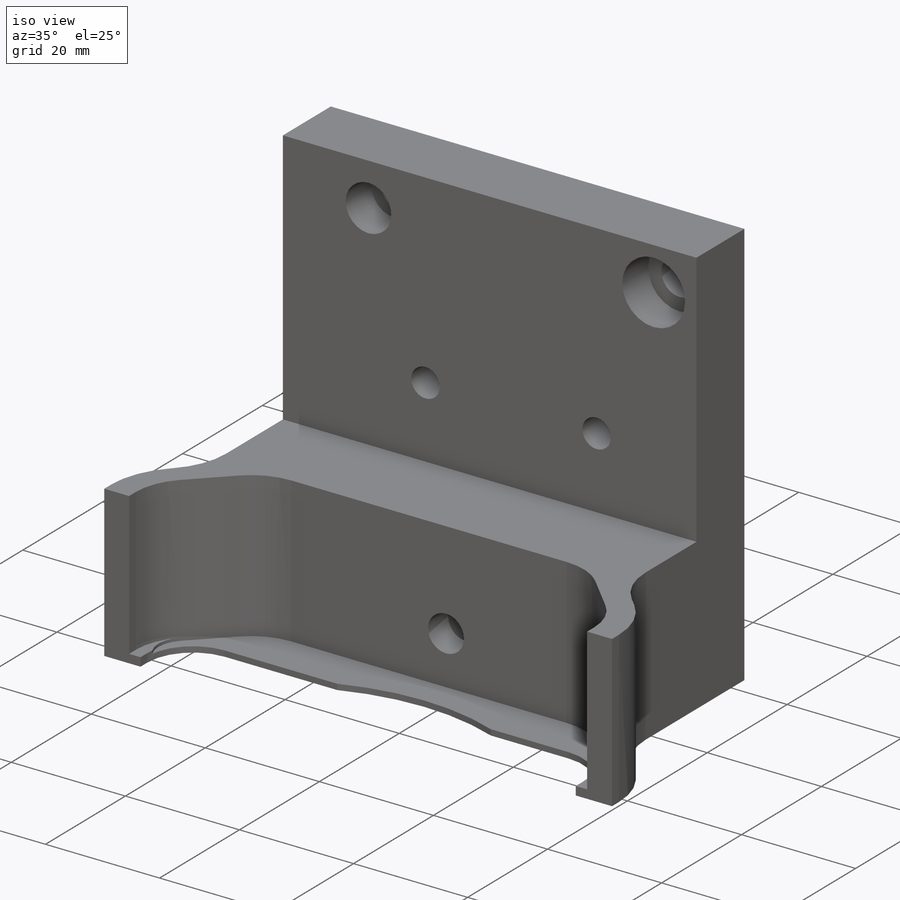
[diagram: iso view]
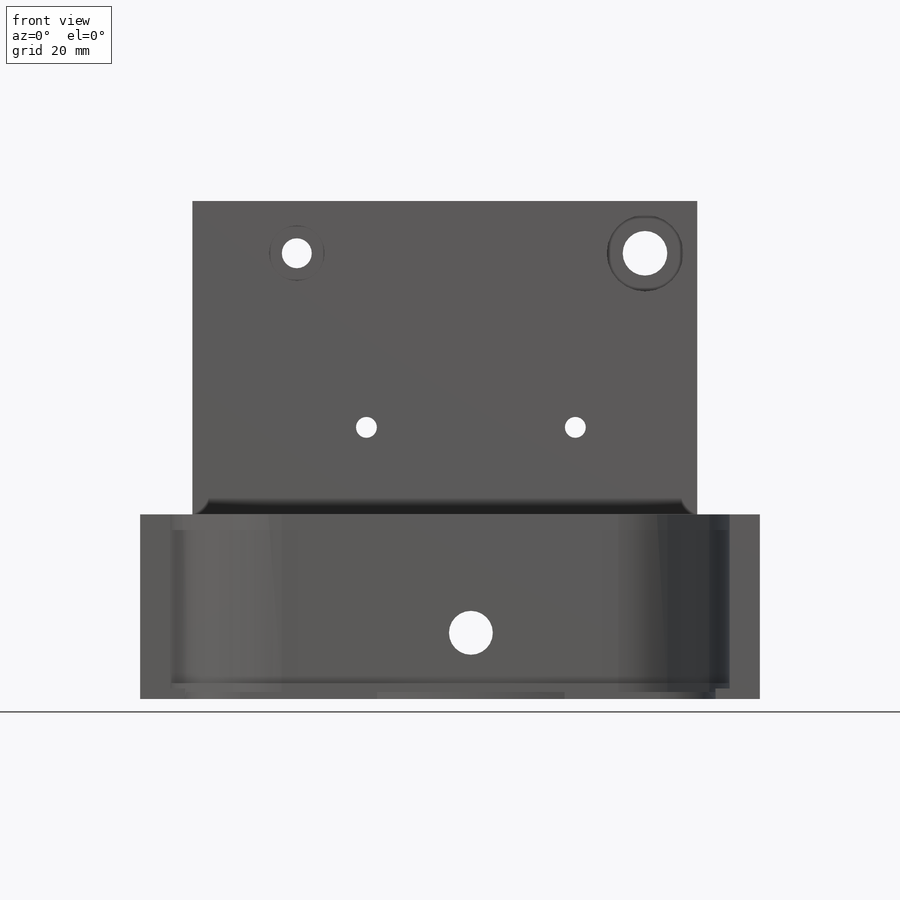
[diagram: front view]
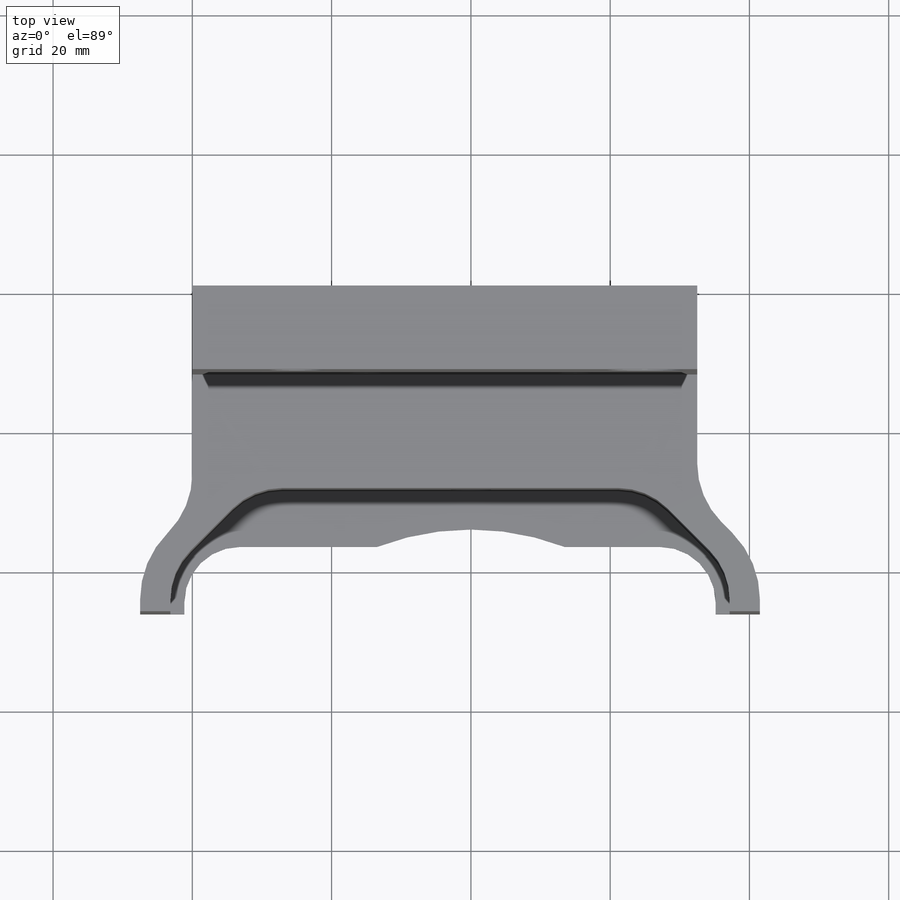
[diagram: top view]
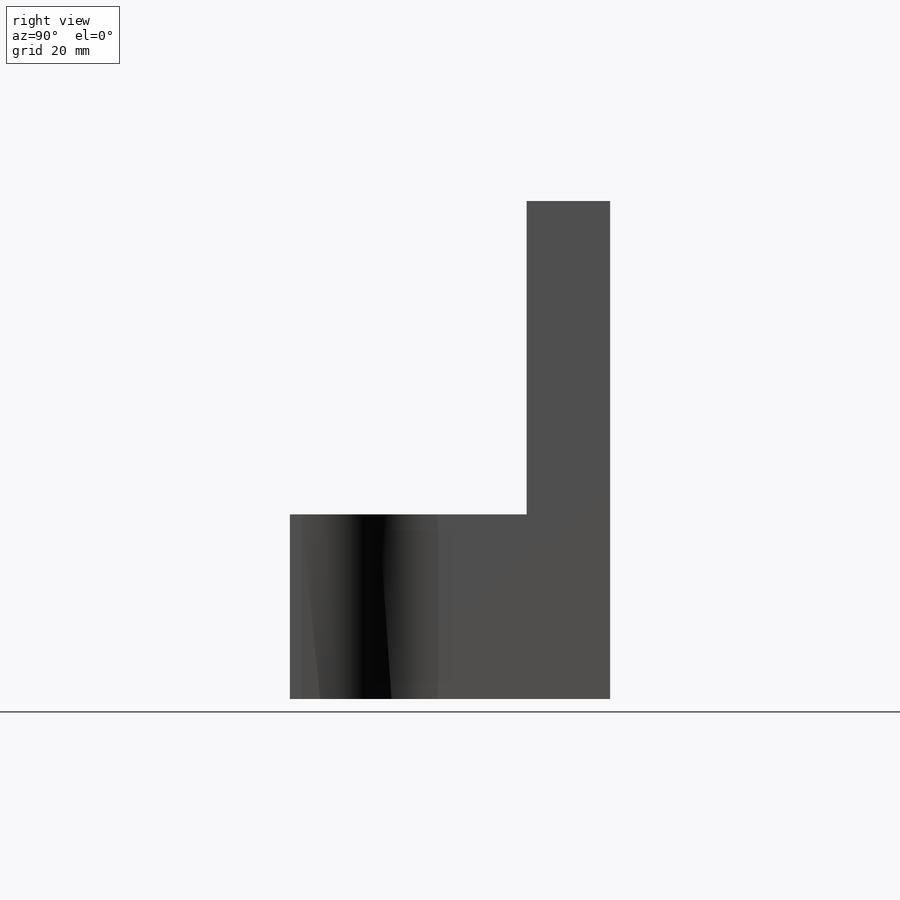
[diagram: right view]
SOLIDWORKS PART (.sldprt)
format: sldprt  version: not decoded by parser v0  size: 435,200 bytes
history: native  units: mm
features: sketch x11, cut_extrude x10, plane x3, material x1, extrude x1 (+8 scaffold rows collapsed)
feature tree (34):
  scaffold x8  (default folders/planes/origin — collapsed)
  material  "1060 Legierung"
  plane  "Ebene vorne"
  plane  "Ebene oben"
  plane  "Ebene rechts"
  sketch  "Skizze1"  dims[D1=47.5mm D2=41.5mm D3=71.5mm]
  extrude  "Linear austragen1"  Depth=46mm
  sketch  "Skizze12"  dims[D1=12.0mm]
  cut_extrude  "Linear austragen2"  Depth=26.5mm
  sketch  "Skizze2"  dims[c1.D1=9.0mm c1.D8=~5.098806mm c1.D5=10.0mm c1.D9=10.0mm c1.D2=43.15mm c1.D3=37.15mm c1.D4=12.0mm c2.D5=33.5mm c2.D6=27.5mm c2.D7=6.0mm c2.D1=34.3mm c2.D4=61.0mm c3.D4=45.0deg c3.D1=~60.257695mm c4.D1=45.0deg c4.D6=28.3mm c4.D7=16.0mm c4.D8=44.3mm c4.D10=48.3mm c4.D11=80.3mm]
  cut_extrude  "Linear austragen3"  Depth=1.5mm
  sketch  "Skizze14"  dims[c1.D2=8.0mm c1.D5=37.5mm c1.D1=8.5mm c1.D3=2.0mm c1.D4=2.0mm c1.D6=34.5mm c2.D1=1.2mm]
  cut_extrude  "Linear austragen9"  [1 undecoded]
  sketch  "Skizze16"  dims[c1.D1=3.0mm c1.D3=10.0mm c2.D1=6.0mm c2.D2=6.0mm c3.D1=3.0mm c3.D2=~2.910923mm c4.D2=60.0deg c4.D3=~4.611674mm c5.D3=60.0deg c5.D2=~8.418121mm c6.D2=120.0deg c6.D3=~50.956854mm c7.D3=120.0deg]
  cut_extrude  "Schnitt-Linear austragen1"  Depth=0.5mm
  sketch  "Skizze3"  dims[D1=3.0mm D5=4.3mm D7=6.4mm D2=30.0mm D3=39.0mm D4=25.0mm D6=50.0mm D8=7.5mm]
  cut_extrude  "Linear austragen4"  [1 undecoded]
  sketch  "Skizze4"  dims[D1=8.0mm D2=11.0mm D3=5.0mm]
  cut_extrude  "Linear austragen5"  Depth=5.5mm
  sketch  "Skizze13"  dims[D1=5.0mm]
  cut_extrude  "Linear austragen8"  Depth=4mm
  sketch  "Skizze10"  dims[D1=6.3mm D2=9.5mm]
  cut_extrude  "Linear austragen6"  [1 undecoded]
  sketch  "Skizze11"  dims[D1=11.0mm D2=~16.989567mm]
  cut_extrude  "Linear austragen7"  Depth=5mm
  sketch  "Skizze15"  dims[c1.D3=13.5mm c1.D5=12.0mm c1.D6=13.5mm c1.D7=12.0mm c1.D8=13.5mm c1.D1=7.5mm c1.D2=9.0mm c1.D4=43.8mm c2.D4=45.0deg c2.D7=~5.526015mm c2.D6=~2.290999mm c3.D6=45.0deg c3.D9=2.2mm c3.D10=2.2mm]
  cut_extrude  "Linear austragen10"  [1 undecoded]
decode coverage: 18 of 22 modeling features carry decoded parameters
note: ~ marks probable driven/reference dimensions
note: 4 parameter values undecoded
summary: no parameter record found for 4 features
note: suppression state not decoded; provenance and decode notes live in map.json
